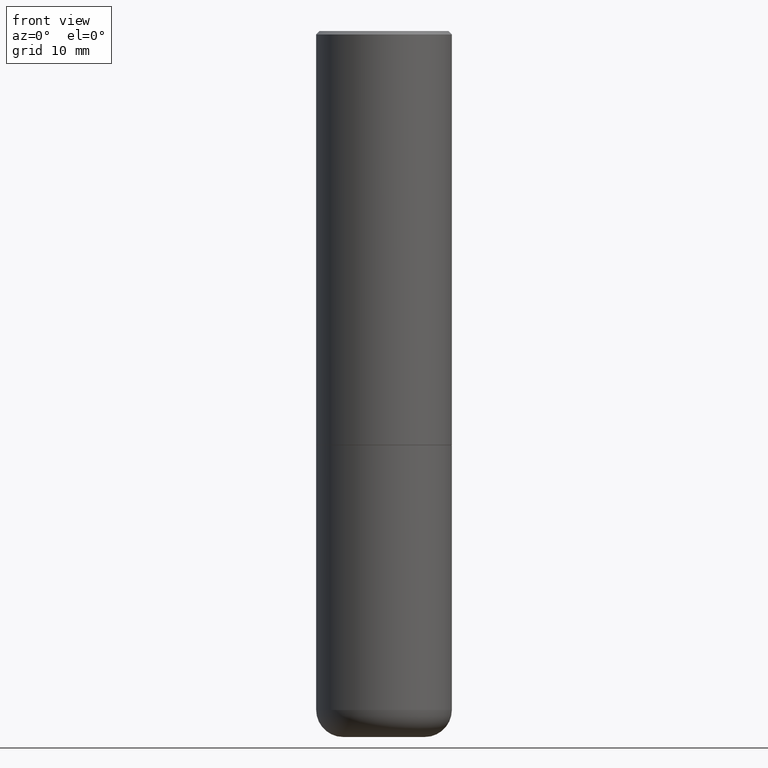
[diagram: clean part render]
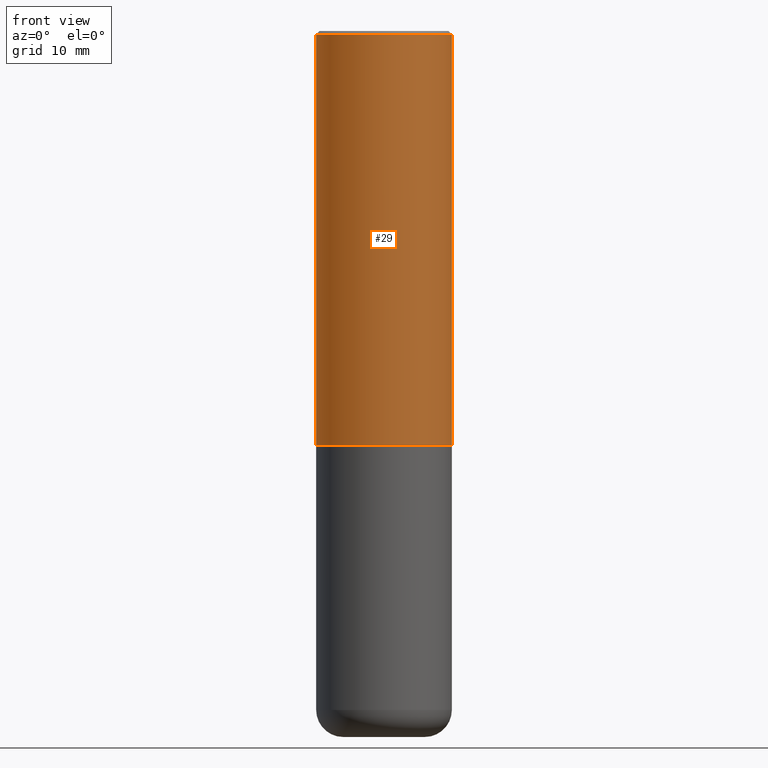
[diagram: same view with one face highlighted and labeled with its STEP entity id]
A machine part, front view. The second image highlights one B-rep face of the part: STEP entity #29.
In plain terms, the highlighted cylindrical surface (partial cylindrical patch) has radius 10 mm, axis along (-0, 0, 1).
Its self-contained STEP definition (entity closure, byte-faithful):
#3 = CARTESIAN_POINT ( 'NONE',  ( 0.3937000000000000499, -2.770807688499515734E-15, -0.02000000000000008715 ) ) ;
#5 = AXIS2_PLACEMENT_3D ( 'NONE', #212, #144, #364 ) ;
#7 = AXIS2_PLACEMENT_3D ( 'NONE', #231, #319, #286 ) ;
#8 = LINE ( 'NONE', #10, #402 ) ;
#10 = CARTESIAN_POINT ( 'NONE',  ( 0.3937000000000001609, -2.749192406205084400E-15, 1.919750796630860732E-29 ) ) ;
#14 = CIRCLE ( 'NONE', #81, 0.3937000000000000499 ) ;
#27 = EDGE_LOOP ( 'NONE', ( #257, #169, #233, #259 ) ) ;
#29 = ADVANCED_FACE ( 'NONE', ( #297 ), #115, .T. ) ;
#81 = AXIS2_PLACEMENT_3D ( 'NONE', #372, #222, #89 ) ;
#89 = DIRECTION ( 'NONE',  ( 1.000000000000000000, -6.982962677686265922E-15, 0.000000000000000000 ) ) ;
#92 = LINE ( 'NONE', #272, #157 ) ;
#93 = VERTEX_POINT ( 'NONE', #295 ) ;
#115 = CYLINDRICAL_SURFACE ( 'NONE', #5, 0.3937000000000001609 ) ;
#117 = EDGE_CURVE ( 'NONE', #93, #287, #14, .T. ) ;
#141 = EDGE_CURVE ( 'NONE', #162, #93, #92, .T. ) ;
#144 = DIRECTION ( 'NONE',  ( -2.445468806185136597E-29, 3.491481338843145583E-15, 1.000000000000000000 ) ) ;
#157 = VECTOR ( 'NONE', #340, 39.37007874015748143 ) ;
#162 = VERTEX_POINT ( 'NONE', #164 ) ;
#164 = CARTESIAN_POINT ( 'NONE',  ( -0.3937000000000003830, -1.428333113714341032E-15, -2.400600000000000289 ) ) ;
#169 = ORIENTED_EDGE ( 'NONE', *, *, #253, .T. ) ;
#212 = CARTESIAN_POINT ( 'NONE',  ( 0.000000000000000000, 0.000000000000000000, 0.000000000000000000 ) ) ;
#222 = DIRECTION ( 'NONE',  ( -2.445468806185136597E-29, 3.491481338843145583E-15, 1.000000000000000000 ) ) ;
#231 = CARTESIAN_POINT ( 'NONE',  ( 5.870592416128038746E-29, -8.381650102026855834E-15, -2.400600000000000289 ) ) ;
#233 = ORIENTED_EDGE ( 'NONE', *, *, #274, .T. ) ;
#234 = CIRCLE ( 'NONE', #7, 0.3937000000000002720 ) ;
#253 = EDGE_CURVE ( 'NONE', #162, #416, #234, .T. ) ;
#257 = ORIENTED_EDGE ( 'NONE', *, *, #141, .F. ) ;
#259 = ORIENTED_EDGE ( 'NONE', *, *, #117, .F. ) ;
#272 = CARTESIAN_POINT ( 'NONE',  ( -0.3937000000000001609, 2.797406750687515575E-15, -1.936584745033357296E-29 ) ) ;
#274 = EDGE_CURVE ( 'NONE', #416, #287, #8, .T. ) ;
#286 = DIRECTION ( 'NONE',  ( 1.000000000000000000, -6.982962677686265922E-15, 0.000000000000000000 ) ) ;
#287 = VERTEX_POINT ( 'NONE', #3 ) ;
#295 = CARTESIAN_POINT ( 'NONE',  ( -0.3937000000000000499, 2.679362779428219918E-15, -0.02000000000000008715 ) ) ;
#297 = FACE_OUTER_BOUND ( 'NONE', #27, .T. ) ;
#319 = DIRECTION ( 'NONE',  ( -2.445468806185136597E-29, 3.491481338843145583E-15, 1.000000000000000000 ) ) ;
#340 = DIRECTION ( 'NONE',  ( -2.445468806185136877E-29, 3.491481338843145188E-15, 1.000000000000000000 ) ) ;
#364 = DIRECTION ( 'NONE',  ( 1.000000000000000000, -6.982962677686266711E-15, 4.876176775795935793E-29 ) ) ;
#372 = CARTESIAN_POINT ( 'NONE',  ( 4.890937612370294178E-31, -6.982962677686321191E-17, -0.02000000000000008715 ) ) ;
#394 = DIRECTION ( 'NONE',  ( -2.445468806185136877E-29, 3.491481338843145188E-15, 1.000000000000000000 ) ) ;
#402 = VECTOR ( 'NONE', #394, 39.37007874015748143 ) ;
#406 = CARTESIAN_POINT ( 'NONE',  ( 0.3937000000000002720, -1.113084250823194063E-14, -2.400600000000000289 ) ) ;
#416 = VERTEX_POINT ( 'NONE', #406 ) ;